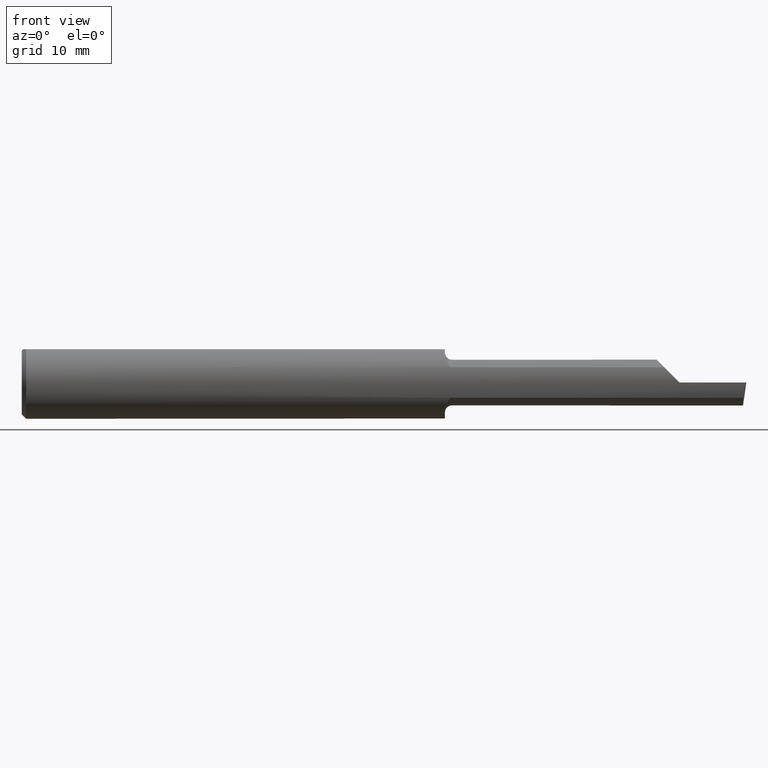
[diagram: clean part render]
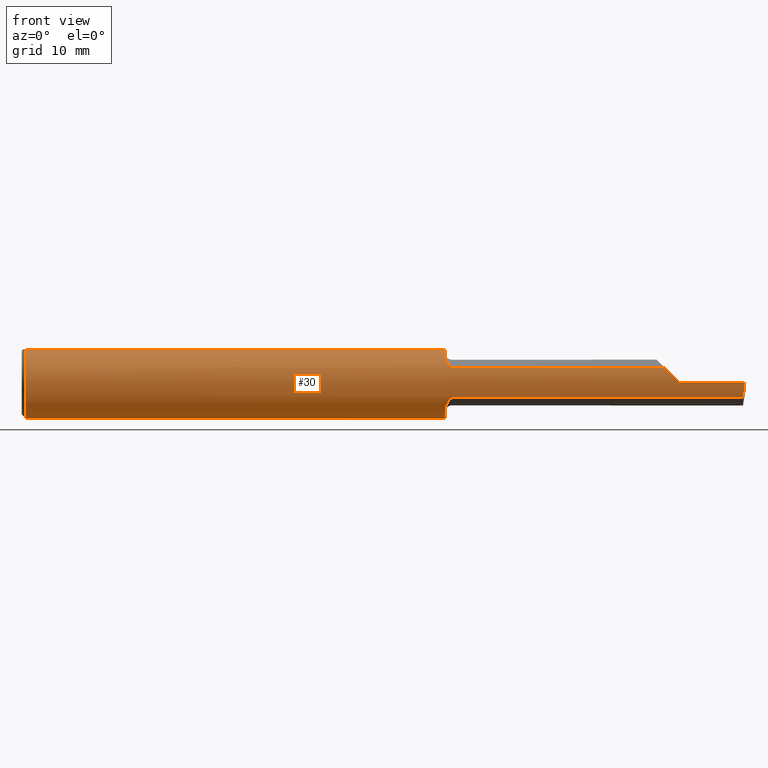
[diagram: same view with one face highlighted and labeled with its STEP entity id]
A machine part, front view. The second image highlights one B-rep face of the part: STEP entity #30.
In plain terms, the highlighted cylindrical surface (edge-blend (fillet) strip) has radius 3.1712 mm, axis along (-1, -0, -0).
Its self-contained STEP definition (entity closure, byte-faithful):
#2 = CARTESIAN_POINT ( 'NONE',  ( 4.111069666048746882E-31, -0.1248499999999999888, 9.802154982235641300E-16 ) ) ;
#4 = CARTESIAN_POINT ( 'NONE',  ( 1.485000000000000098, -0.1133222222222221853, -0.05239843939104740084 ) ) ;
#11 = ORIENTED_EDGE ( 'NONE', *, *, #55, .T. ) ;
#30 = ADVANCED_FACE ( 'NONE', ( #562 ), #498, .T. ) ;
#46 = DIRECTION ( 'NONE',  ( 1.000000000000000000, 0.0000000000000000000, 0.0000000000000000000 ) ) ;
#51 = CARTESIAN_POINT ( 'NONE',  ( 1.459999999999999742, -0.07605073478940853338, -0.09921234202752104991 ) ) ;
#55 = EDGE_CURVE ( 'NONE', #572, #520, #110, .T. ) ;
#57 = ORIENTED_EDGE ( 'NONE', *, *, #466, .F. ) ;
#69 = VERTEX_POINT ( 'NONE', #476 ) ;
#78 = EDGE_CURVE ( 'NONE', #442, #166, #573, .T. ) ;
#82 = EDGE_CURVE ( 'NONE', #101, #219, #273, .T. ) ;
#85 = CARTESIAN_POINT ( 'NONE',  ( 1.459999999999997300, -0.07604212793636101753, 0.09921827904968774647 ) ) ;
#90 = VECTOR ( 'NONE', #177, 39.37007874015748143 ) ;
#94 = VERTEX_POINT ( 'NONE', #4 ) ;
#95 = CARTESIAN_POINT ( 'NONE',  ( 0.0000000000000000000, 0.0000000000000000000, 0.0000000000000000000 ) ) ;
#101 = VERTEX_POINT ( 'NONE', #433 ) ;
#102 = AXIS2_PLACEMENT_3D ( 'NONE', #385, #481, #617 ) ;
#104 = CARTESIAN_POINT ( 'NONE',  ( 2.234090882882975748, -0.1209466293052443159, 0.03590911711702327036 ) ) ;
#110 = LINE ( 'NONE', #2, #90 ) ;
#112 = CARTESIAN_POINT ( 'NONE',  ( 1.460000000000000187, 0.0000000000000000000, 0.0000000000000000000 ) ) ;
#114 = CARTESIAN_POINT ( 'NONE',  ( 1.474891482046761571, -0.1103130882036816723, 0.05851436580809124544 ) ) ;
#118 = EDGE_CURVE ( 'NONE', #520, #252, #421, .T. ) ;
#120 = CARTESIAN_POINT ( 'NONE',  ( 1.460429435078794524, -0.08094870196673341345, -0.09525057567498891598 ) ) ;
#121 = DIRECTION ( 'NONE',  ( 1.000000000000000000, -3.414809992080329023E-18, 0.0000000000000000000 ) ) ;
#123 = CARTESIAN_POINT ( 'NONE',  ( 0.0000000000000000000, 0.04895916665957457392, 0.1148500000000000076 ) ) ;
#126 = DIRECTION ( 'NONE',  ( 0.0000000000000000000, 1.000000000000000000, 0.0000000000000000000 ) ) ;
#130 = LINE ( 'NONE', #123, #525 ) ;
#137 = EDGE_CURVE ( 'NONE', #69, #219, #306, .T. ) ;
#147 = CARTESIAN_POINT ( 'NONE',  ( 1.468812999615358716, -0.1047986892473505433, 0.06808587976958069277 ) ) ;
#149 = CARTESIAN_POINT ( 'NONE',  ( 0.01499999999999999077, -0.04895916665957456004, 0.1148500000000000215 ) ) ;
#154 = AXIS2_PLACEMENT_3D ( 'NONE', #307, #350, #179 ) ;
#159 = CARTESIAN_POINT ( 'NONE',  ( 1.460000000000000187, -0.07089166666666688044, 0.1027710761704001691 ) ) ;
#161 = ORIENTED_EDGE ( 'NONE', *, *, #434, .F. ) ;
#166 = VERTEX_POINT ( 'NONE', #377 ) ;
#177 = DIRECTION ( 'NONE',  ( -1.000000000000000000, -0.0000000000000000000, -0.0000000000000000000 ) ) ;
#178 = VERTEX_POINT ( 'NONE', #232 ) ;
#179 = DIRECTION ( 'NONE',  ( 0.0000000000000000000, 0.0000000000000000000, 1.000000000000000000 ) ) ;
#185 = CARTESIAN_POINT ( 'NONE',  ( 2.270000000000000018, -0.1248500000000000165, 2.816687638038912303E-17 ) ) ;
#187 = LINE ( 'NONE', #611, #321 ) ;
#196 = CARTESIAN_POINT ( 'NONE',  ( 1.460000000000000187, -0.07089166666666688044, -0.1027710761704001691 ) ) ;
#198 = CARTESIAN_POINT ( 'NONE',  ( 1.460000000000000187, 0.0000000000000000000, 0.0000000000000000000 ) ) ;
#205 = CIRCLE ( 'NONE', #154, 0.1248500000000000026 ) ;
#213 = EDGE_CURVE ( 'NONE', #597, #101, #205, .T. ) ;
#217 = CARTESIAN_POINT ( 'NONE',  ( 1.463311842522019068, -0.09402697795089832999, 0.08235509766544017729 ) ) ;
#219 = VERTEX_POINT ( 'NONE', #149 ) ;
#221 = VECTOR ( 'NONE', #503, 39.37007874015748143 ) ;
#223 = EDGE_CURVE ( 'NONE', #352, #94, #372, .T. ) ;
#232 = CARTESIAN_POINT ( 'NONE',  ( 1.460000000000000187, 0.04895916665957456004, 0.1148500000000000076 ) ) ;
#252 = VERTEX_POINT ( 'NONE', #555 ) ;
#265 = CARTESIAN_POINT ( 'NONE',  ( 1.479195140613335457, -0.1123729516825158758, -0.05441079362540564984 ) ) ;
#269 = CARTESIAN_POINT ( 'NONE',  ( 1.466709462345916704, -0.1014961360546400848, -0.07295290821911695756 ) ) ;
#273 = CIRCLE ( 'NONE', #102, 0.1248500000000000026 ) ;
#282 = ORIENTED_EDGE ( 'NONE', *, *, #137, .T. ) ;
#283 = EDGE_CURVE ( 'NONE', #597, #178, #130, .T. ) ;
#284 = CARTESIAN_POINT ( 'NONE',  ( 1.885000000000000231, -0.1133222222222223519, -0.05239843939104731063 ) ) ;
#289 = CARTESIAN_POINT ( 'NONE',  ( 1.460000000000000187, -0.07089166666666688044, 0.1027710761704001691 ) ) ;
#297 = CARTESIAN_POINT ( 'NONE',  ( 2.251833290544947630, -0.1248500000000000165, 0.01816670945505163143 ) ) ;
#300 = CARTESIAN_POINT ( 'NONE',  ( 2.489204846642126157, -0.1133222222222223519, -0.05239843939104731063 ) ) ;
#303 = EDGE_LOOP ( 'NONE', ( #464, #319, #11, #474, #542, #634, #161, #282, #526, #327, #579, #57, #429 ) ) ;
#306 = LINE ( 'NONE', #486, #422 ) ;
#307 = CARTESIAN_POINT ( 'NONE',  ( 0.01499999999999999424, 0.0000000000000000000, 0.0000000000000000000 ) ) ;
#313 = AXIS2_PLACEMENT_3D ( 'NONE', #112, #121, #126 ) ;
#319 = ORIENTED_EDGE ( 'NONE', *, *, #556, .T. ) ;
#321 = VECTOR ( 'NONE', #396, 39.37007874015748143 ) ;
#327 = ORIENTED_EDGE ( 'NONE', *, *, #213, .F. ) ;
#347 = EDGE_CURVE ( 'NONE', #166, #252, #187, .T. ) ;
#349 = B_SPLINE_CURVE_WITH_KNOTS ( 'NONE', 3,
 ( #363, #370, #550, #265, #447, #441, #409, #412, #269, #450, #416, #120, #51, #196 ),
 .UNSPECIFIED., .F., .F.,
 ( 4, 2, 2, 2, 2, 2, 4 ),
 ( 1.961860195742902937E-07, 0.0001199556417433996175, 0.0002397150974672249287, 0.0004792340089148621070, 0.0009582718318101462757, 0.001437309654705430390, 0.001916347477600714505 ),
 .UNSPECIFIED. ) ;
#350 = DIRECTION ( 'NONE',  ( -1.000000000000000000, -0.0000000000000000000, -0.0000000000000000000 ) ) ;
#352 = VERTEX_POINT ( 'NONE', #615 ) ;
#360 = EDGE_CURVE ( 'NONE', #94, #388, #349, .T. ) ;
#363 = CARTESIAN_POINT ( 'NONE',  ( 1.485000000000000098, -0.1133222222222221853, -0.05239843939104740084 ) ) ;
#370 = CARTESIAN_POINT ( 'NONE',  ( 1.483397973893801014, -0.1133222222222222686, -0.05239843939104744247 ) ) ;
#372 = LINE ( 'NONE', #284, #221 ) ;
#377 = CARTESIAN_POINT ( 'NONE',  ( 1.485000000000000098, -0.1133222222222221992, 0.05239843939104738696 ) ) ;
#385 = CARTESIAN_POINT ( 'NONE',  ( 0.01499999999999999424, 0.0000000000000000000, 0.0000000000000000000 ) ) ;
#388 = VERTEX_POINT ( 'NONE', #660 ) ;
#396 = DIRECTION ( 'NONE',  ( 1.000000000000000000, -3.414809992080329023E-18, 0.0000000000000000000 ) ) ;
#397 = CARTESIAN_POINT ( 'NONE',  ( 2.493107549887202623, -0.1248500000000000026, -0.01816670945505170429 ) ) ;
#403 = CIRCLE ( 'NONE', #313, 0.1248500000000000026 ) ;
#406 = CARTESIAN_POINT ( 'NONE',  ( 1.466702553529778852, -0.1014824713796366601, 0.07297083456247524524 ) ) ;
#409 = CARTESIAN_POINT ( 'NONE',  ( 1.473205018706407188, -0.1090156405642971338, -0.06091562844815640032 ) ) ;
#412 = CARTESIAN_POINT ( 'NONE',  ( 1.468837986083219915, -0.1048226606062679089, -0.06804511026469602097 ) ) ;
#416 = CARTESIAN_POINT ( 'NONE',  ( 1.462089430766778220, -0.08992021952243411942, -0.08683155323701798045 ) ) ;
#421 =( BOUNDED_CURVE ( )  B_SPLINE_CURVE ( 3, ( #605, #297, #104, #637 ),
 .UNSPECIFIED., .F., .F. ) 
 B_SPLINE_CURVE_WITH_KNOTS ( ( 4, 4 ),
 ( 4.712388980384688786, 5.145493999647445804 ),
 .UNSPECIFIED. ) 
 CURVE ( )  GEOMETRIC_REPRESENTATION_ITEM ( )  RATIONAL_B_SPLINE_CURVE ( ( 1.000000000000000000, 0.9844293286710339430, 0.9844293286710339430, 1.000000000000000000 ) ) 
 REPRESENTATION_ITEM ( '' )  );
#422 = VECTOR ( 'NONE', #493, 39.37007874015748143 ) ;
#429 = ORIENTED_EDGE ( 'NONE', *, *, #360, .F. ) ;
#431 = CARTESIAN_POINT ( 'NONE',  ( 1.473217602974939755, -0.1090277136498279259, 0.06089509507572536673 ) ) ;
#433 = CARTESIAN_POINT ( 'NONE',  ( 0.01499999999999999424, 0.0000000000000000000, -0.1248500000000000026 ) ) ;
#434 = EDGE_CURVE ( 'NONE', #69, #442, #403, .T. ) ;
#436 = CARTESIAN_POINT ( 'NONE',  ( 2.495338905960690301, -0.1248500000000000582, -6.632093541198147639E-17 ) ) ;
#437 = CARTESIAN_POINT ( 'NONE',  ( 2.491030522740640407, -0.1209466293052442881, -0.03590911711702318015 ) ) ;
#441 = CARTESIAN_POINT ( 'NONE',  ( 1.474878942730256215, -0.1103076286869490025, -0.05852540734030604180 ) ) ;
#442 = VERTEX_POINT ( 'NONE', #159 ) ;
#447 = CARTESIAN_POINT ( 'NONE',  ( 1.478018389903473562, -0.1118940578004066627, -0.05539504279880008708 ) ) ;
#450 = CARTESIAN_POINT ( 'NONE',  ( 1.463310246323733965, -0.09402499227299762619, -0.08235832246780928900 ) ) ;
#451 = AXIS2_PLACEMENT_3D ( 'NONE', #198, #607, #457 ) ;
#457 = DIRECTION ( 'NONE',  ( 0.0000000000000000000, 1.000000000000000000, 0.0000000000000000000 ) ) ;
#464 = ORIENTED_EDGE ( 'NONE', *, *, #223, .F. ) ;
#466 = EDGE_CURVE ( 'NONE', #388, #178, #563, .T. ) ;
#468 = DIRECTION ( 'NONE',  ( 0.0000000000000000000, 0.0000000000000000000, 1.000000000000000000 ) ) ;
#473 = CARTESIAN_POINT ( 'NONE',  ( 1.462066153268989366, -0.08982957272875706500, 0.08692514756739025406 ) ) ;
#474 = ORIENTED_EDGE ( 'NONE', *, *, #118, .T. ) ;
#476 = CARTESIAN_POINT ( 'NONE',  ( 1.460000000000000187, -0.04895916665957457392, 0.1148500000000000215 ) ) ;
#481 = DIRECTION ( 'NONE',  ( -1.000000000000000000, -0.0000000000000000000, -0.0000000000000000000 ) ) ;
#486 = CARTESIAN_POINT ( 'NONE',  ( 0.0000000000000000000, -0.04895916665957456004, 0.1148500000000000076 ) ) ;
#493 = DIRECTION ( 'NONE',  ( -1.000000000000000000, -0.0000000000000000000, -0.0000000000000000000 ) ) ;
#498 = CYLINDRICAL_SURFACE ( 'NONE', #515, 0.1248500000000000026 ) ;
#503 = DIRECTION ( 'NONE',  ( -1.000000000000000000, 3.414809992080329023E-18, -0.0000000000000000000 ) ) ;
#507 = CARTESIAN_POINT ( 'NONE',  ( 2.495338905960690301, -0.1248500000000000582, -6.632093541198147639E-17 ) ) ;
#515 = AXIS2_PLACEMENT_3D ( 'NONE', #95, #646, #468 ) ;
#520 = VERTEX_POINT ( 'NONE', #185 ) ;
#522 = CARTESIAN_POINT ( 'NONE',  ( 1.478003366130775653, -0.1118869025553488328, 0.05540929543234567045 ) ) ;
#525 = VECTOR ( 'NONE', #46, 39.37007874015748143 ) ;
#526 = ORIENTED_EDGE ( 'NONE', *, *, #82, .F. ) ;
#529 = CARTESIAN_POINT ( 'NONE',  ( 0.01499999999999999424, 0.04895916665957457392, 0.1148500000000000076 ) ) ;
#535 = CARTESIAN_POINT ( 'NONE',  ( 1.485000000000000098, -0.1133222222222221992, 0.05239843939104738696 ) ) ;
#542 = ORIENTED_EDGE ( 'NONE', *, *, #347, .F. ) ;
#550 = CARTESIAN_POINT ( 'NONE',  ( 1.481867218484673066, -0.1130881303947560979, -0.05290831216931971004 ) ) ;
#555 = CARTESIAN_POINT ( 'NONE',  ( 2.217601560608951861, -0.1133222222222222686, 0.05239843939104743553 ) ) ;
#556 = EDGE_CURVE ( 'NONE', #352, #572, #595, .T. ) ;
#558 = CARTESIAN_POINT ( 'NONE',  ( 1.481855009147952540, -0.1130869929873386942, 0.05291095013438990718 ) ) ;
#562 = FACE_OUTER_BOUND ( 'NONE', #303, .T. ) ;
#563 = CIRCLE ( 'NONE', #451, 0.1248500000000000026 ) ;
#572 = VERTEX_POINT ( 'NONE', #507 ) ;
#573 = B_SPLINE_CURVE_WITH_KNOTS ( 'NONE', 3,
 ( #289, #85, #574, #473, #217, #406, #147, #431, #114, #522, #655, #558, #638, #535 ),
 .UNSPECIFIED., .F., .F.,
 ( 4, 2, 2, 2, 2, 2, 4 ),
 ( 6.218642020841720630E-05, 0.0005341583913332143864, 0.001006130362458011566, 0.001478102333582808530, 0.001714088319145203000, 0.001832081311926399801, 0.001950074304707596819 ),
 .UNSPECIFIED. ) ;
#574 = CARTESIAN_POINT ( 'NONE',  ( 1.460418395875213937, -0.08085314529530901462, 0.09533153891603383945 ) ) ;
#579 = ORIENTED_EDGE ( 'NONE', *, *, #283, .T. ) ;
#595 =( BOUNDED_CURVE ( )  B_SPLINE_CURVE ( 3, ( #300, #437, #397, #436 ),
 .UNSPECIFIED., .F., .T. ) 
 B_SPLINE_CURVE_WITH_KNOTS ( ( 4, 4 ),
 ( 0.9276418632516072460, 1.360746882514361156 ),
 .UNSPECIFIED. ) 
 CURVE ( )  GEOMETRIC_REPRESENTATION_ITEM ( )  RATIONAL_B_SPLINE_CURVE ( ( 1.000000000000000000, 0.9844293286710340540, 0.9844293286710340540, 1.000000000000000000 ) ) 
 REPRESENTATION_ITEM ( '' )  );
#597 = VERTEX_POINT ( 'NONE', #529 ) ;
#605 = CARTESIAN_POINT ( 'NONE',  ( 2.270000000000000018, -0.1248500000000000165, 2.816687638038912303E-17 ) ) ;
#607 = DIRECTION ( 'NONE',  ( 1.000000000000000000, -3.414809992080329023E-18, 0.0000000000000000000 ) ) ;
#611 = CARTESIAN_POINT ( 'NONE',  ( 1.885000000000000231, -0.1133222222222223519, 0.05239843939104731063 ) ) ;
#615 = CARTESIAN_POINT ( 'NONE',  ( 2.489204846642126157, -0.1133222222222223519, -0.05239843939104731063 ) ) ;
#617 = DIRECTION ( 'NONE',  ( 0.0000000000000000000, 0.0000000000000000000, 1.000000000000000000 ) ) ;
#634 = ORIENTED_EDGE ( 'NONE', *, *, #78, .F. ) ;
#637 = CARTESIAN_POINT ( 'NONE',  ( 2.217601560608951861, -0.1133222222222222686, 0.05239843939104743553 ) ) ;
#638 = CARTESIAN_POINT ( 'NONE',  ( 1.483393805215130090, -0.1133222222232596887, 0.05239843938880403562 ) ) ;
#646 = DIRECTION ( 'NONE',  ( -1.000000000000000000, -0.0000000000000000000, -0.0000000000000000000 ) ) ;
#655 = CARTESIAN_POINT ( 'NONE',  ( 1.479156347344547928, -0.1123603976562050355, 0.05443691454869349633 ) ) ;
#660 = CARTESIAN_POINT ( 'NONE',  ( 1.460000000000000187, -0.07089166666666688044, -0.1027710761704001691 ) ) ;